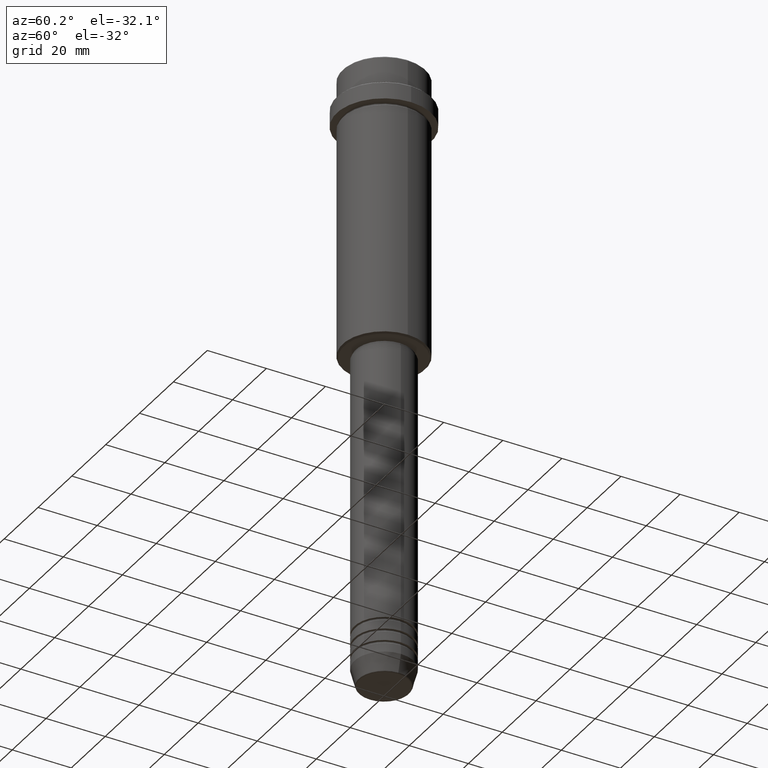
[diagram: clean part render]
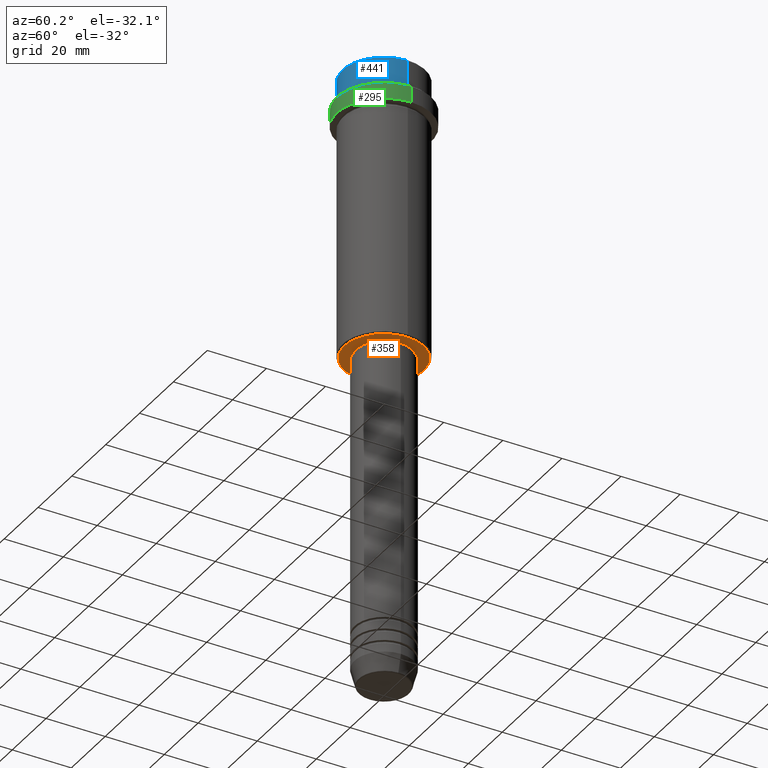
[diagram: same view with three faces highlighted in distinct colors, each labeled with its STEP entity id]
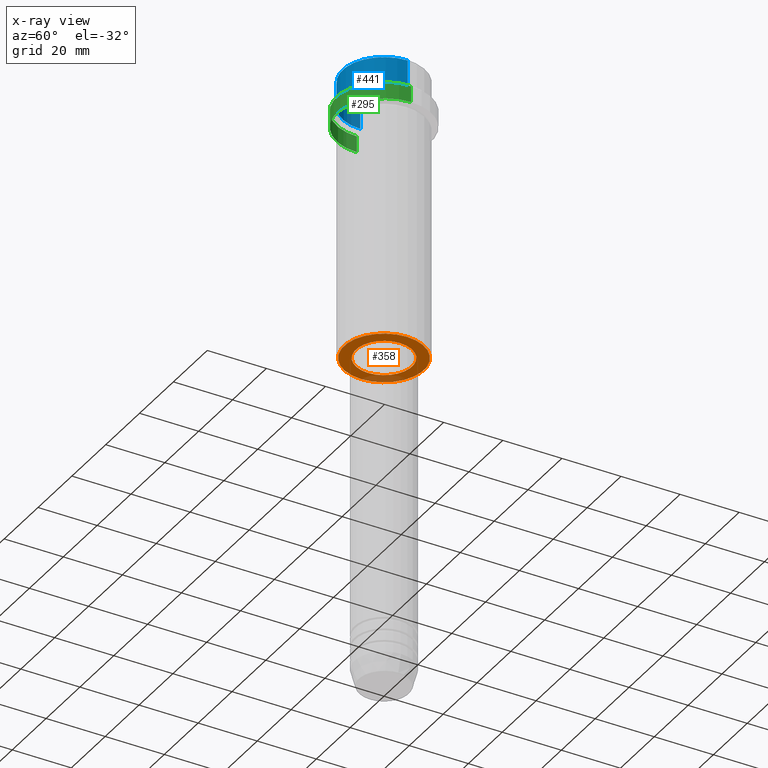
[diagram: x-ray of the same camera — body ghosted, the three highlighted faces saturated]
A machine part, auxiliary view with three faces highlighted in distinct colors.
The next image is the same camera in x-ray (body ghosted, the three faces saturated) — at least one of them is partly hidden behind the body in this view.
Their STEP definitions:

[orange] entity #358 — the highlighted planar face has unit normal (0, 0, -1).
#1 = FACE_BOUND ( 'NONE', #805, .T. ) ;
#5 = VERTEX_POINT ( 'NONE', #900 ) ;
#43 = VERTEX_POINT ( 'NONE', #1018 ) ;
#55 = ORIENTED_EDGE ( 'NONE', *, *, #289, .T. ) ;
#83 = CIRCLE ( 'NONE', #255, 13.50000000000006928 ) ;
#133 = DIRECTION ( 'NONE',  ( 0.000000000000000000, 0.000000000000000000, -1.000000000000000000 ) ) ;
#149 = CIRCLE ( 'NONE', #509, 9.499999999999996447 ) ;
#150 = DIRECTION ( 'NONE',  ( -0.000000000000000000, -0.000000000000000000, 1.000000000000000000 ) ) ;
#215 = CARTESIAN_POINT ( 'NONE',  ( -13.50000000000006928, 1.683889348827613809E-15, -95.99999999999998579 ) ) ;
#217 = VERTEX_POINT ( 'NONE', #215 ) ;
#255 = AXIS2_PLACEMENT_3D ( 'NONE', #360, #695, #1138 ) ;
#258 = CIRCLE ( 'NONE', #855, 9.499999999999996447 ) ;
#289 = EDGE_CURVE ( 'NONE', #924, #217, #1360, .T. ) ;
#325 = CARTESIAN_POINT ( 'NONE',  ( 0.000000000000000000, 14.00000000000000000, -95.99999999999998579 ) ) ;
#358 = ADVANCED_FACE ( 'NONE', ( #867, #1 ), #1306, .T. ) ;
#360 = CARTESIAN_POINT ( 'NONE',  ( 0.000000000000000000, 0.000000000000000000, -95.99999999999998579 ) ) ;
#364 = DIRECTION ( 'NONE',  ( 1.000000000000000000, 0.000000000000000000, 0.000000000000000000 ) ) ;
#388 = EDGE_LOOP ( 'NONE', ( #55, #657 ) ) ;
#439 = DIRECTION ( 'NONE',  ( -1.000000000000000000, 0.000000000000000000, -0.000000000000000000 ) ) ;
#468 = CARTESIAN_POINT ( 'NONE',  ( 0.000000000000000000, 0.000000000000000000, -95.99999999999998579 ) ) ;
#509 = AXIS2_PLACEMENT_3D ( 'NONE', #688, #150, #364 ) ;
#623 = CARTESIAN_POINT ( 'NONE',  ( 0.000000000000000000, 0.000000000000000000, -95.99999999999998579 ) ) ;
#657 = ORIENTED_EDGE ( 'NONE', *, *, #793, .T. ) ;
#673 = ORIENTED_EDGE ( 'NONE', *, *, #1355, .T. ) ;
#688 = CARTESIAN_POINT ( 'NONE',  ( 0.000000000000000000, 0.000000000000000000, -95.99999999999998579 ) ) ;
#695 = DIRECTION ( 'NONE',  ( 0.000000000000000000, 0.000000000000000000, -1.000000000000000000 ) ) ;
#732 = ORIENTED_EDGE ( 'NONE', *, *, #1367, .T. ) ;
#793 = EDGE_CURVE ( 'NONE', #217, #924, #83, .T. ) ;
#801 = DIRECTION ( 'NONE',  ( -0.000000000000000000, -0.000000000000000000, 1.000000000000000000 ) ) ;
#805 = EDGE_LOOP ( 'NONE', ( #673, #732 ) ) ;
#842 = DIRECTION ( 'NONE',  ( 0.000000000000000000, 0.000000000000000000, -1.000000000000000000 ) ) ;
#855 = AXIS2_PLACEMENT_3D ( 'NONE', #468, #801, #1237 ) ;
#867 = FACE_OUTER_BOUND ( 'NONE', #388, .T. ) ;
#900 = CARTESIAN_POINT ( 'NONE',  ( -9.499999999999996447, 1.163414459189985091E-15, -95.99999999999998579 ) ) ;
#924 = VERTEX_POINT ( 'NONE', #1186 ) ;
#1018 = CARTESIAN_POINT ( 'NONE',  ( 9.499999999999996447, 0.000000000000000000, -95.99999999999998579 ) ) ;
#1038 = AXIS2_PLACEMENT_3D ( 'NONE', #623, #842, #1183 ) ;
#1085 = AXIS2_PLACEMENT_3D ( 'NONE', #325, #133, #439 ) ;
#1138 = DIRECTION ( 'NONE',  ( -1.000000000000000000, 0.000000000000000000, 0.000000000000000000 ) ) ;
#1183 = DIRECTION ( 'NONE',  ( -1.000000000000000000, 0.000000000000000000, 0.000000000000000000 ) ) ;
#1186 = CARTESIAN_POINT ( 'NONE',  ( 13.50000000000006928, 0.000000000000000000, -95.99999999999998579 ) ) ;
#1237 = DIRECTION ( 'NONE',  ( 1.000000000000000000, 0.000000000000000000, 0.000000000000000000 ) ) ;
#1306 = PLANE ( 'NONE',  #1085 ) ;
#1355 = EDGE_CURVE ( 'NONE', #43, #5, #258, .T. ) ;
#1360 = CIRCLE ( 'NONE', #1038, 13.50000000000006928 ) ;
#1367 = EDGE_CURVE ( 'NONE', #5, #43, #149, .T. ) ;

[blue] entity #441 — the highlighted cylindrical surface (partial cylindrical patch) has radius 14 mm, axis along (-0, -0, 1).
#17 = DIRECTION ( 'NONE',  ( 1.000000000000000000, 0.000000000000000000, 0.000000000000000000 ) ) ;
#52 = ORIENTED_EDGE ( 'NONE', *, *, #1082, .F. ) ;
#57 = AXIS2_PLACEMENT_3D ( 'NONE', #1334, #1351, #1228 ) ;
#104 = VERTEX_POINT ( 'NONE', #1142 ) ;
#164 = VERTEX_POINT ( 'NONE', #260 ) ;
#174 = EDGE_LOOP ( 'NONE', ( #52, #518, #269, #254 ) ) ;
#192 = VECTOR ( 'NONE', #1210, 1000.000000000000000 ) ;
#240 = VERTEX_POINT ( 'NONE', #846 ) ;
#254 = ORIENTED_EDGE ( 'NONE', *, *, #1231, .T. ) ;
#260 = CARTESIAN_POINT ( 'NONE',  ( 13.99999999999998401, 0.000000000000000000, -0.4999999999999917843 ) ) ;
#269 = ORIENTED_EDGE ( 'NONE', *, *, #1255, .T. ) ;
#281 = CIRCLE ( 'NONE', #1090, 13.99999999999998401 ) ;
#394 = VECTOR ( 'NONE', #857, 1000.000000000000000 ) ;
#432 = CYLINDRICAL_SURFACE ( 'NONE', #435, 13.99999999999998401 ) ;
#435 = AXIS2_PLACEMENT_3D ( 'NONE', #1330, #1347, #17 ) ;
#441 = ADVANCED_FACE ( 'NONE', ( #1209 ), #432, .T. ) ;
#455 = CARTESIAN_POINT ( 'NONE',  ( 13.99999999999998401, 0.000000000000000000, 0.000000000000000000 ) ) ;
#518 = ORIENTED_EDGE ( 'NONE', *, *, #781, .T. ) ;
#551 = DIRECTION ( 'NONE',  ( 0.000000000000000000, 0.000000000000000000, -1.000000000000000000 ) ) ;
#563 = CARTESIAN_POINT ( 'NONE',  ( 0.000000000000000000, 0.000000000000000000, -0.4999999999999917843 ) ) ;
#663 = LINE ( 'NONE', #455, #192 ) ;
#734 = LINE ( 'NONE', #751, #394 ) ;
#751 = CARTESIAN_POINT ( 'NONE',  ( -13.99999999999998401, 1.714505518806292666E-15, 0.000000000000000000 ) ) ;
#781 = EDGE_CURVE ( 'NONE', #1097, #104, #1063, .T. ) ;
#846 = CARTESIAN_POINT ( 'NONE',  ( -13.99999999999998401, 1.714505518806292666E-15, -0.4999999999999917843 ) ) ;
#857 = DIRECTION ( 'NONE',  ( -0.000000000000000000, -0.000000000000000000, 1.000000000000000000 ) ) ;
#889 = DIRECTION ( 'NONE',  ( 1.000000000000000000, 0.000000000000000000, 0.000000000000000000 ) ) ;
#978 = CARTESIAN_POINT ( 'NONE',  ( -13.99999999999997158, 1.714505518806291877E-15, -8.999999999999998224 ) ) ;
#1063 = CIRCLE ( 'NONE', #57, 13.99999999999997158 ) ;
#1082 = EDGE_CURVE ( 'NONE', #1097, #240, #734, .T. ) ;
#1090 = AXIS2_PLACEMENT_3D ( 'NONE', #563, #551, #889 ) ;
#1097 = VERTEX_POINT ( 'NONE', #978 ) ;
#1142 = CARTESIAN_POINT ( 'NONE',  ( 13.99999999999997158, 0.000000000000000000, -8.999999999999998224 ) ) ;
#1209 = FACE_OUTER_BOUND ( 'NONE', #174, .T. ) ;
#1210 = DIRECTION ( 'NONE',  ( -0.000000000000000000, -0.000000000000000000, 1.000000000000000000 ) ) ;
#1228 = DIRECTION ( 'NONE',  ( 1.000000000000000000, 0.000000000000000000, 0.000000000000000000 ) ) ;
#1231 = EDGE_CURVE ( 'NONE', #164, #240, #281, .T. ) ;
#1255 = EDGE_CURVE ( 'NONE', #104, #164, #663, .T. ) ;
#1330 = CARTESIAN_POINT ( 'NONE',  ( 0.000000000000000000, 0.000000000000000000, 0.000000000000000000 ) ) ;
#1334 = CARTESIAN_POINT ( 'NONE',  ( 0.000000000000000000, 0.000000000000000000, -8.999999999999998224 ) ) ;
#1347 = DIRECTION ( 'NONE',  ( -0.000000000000000000, -0.000000000000000000, 1.000000000000000000 ) ) ;
#1351 = DIRECTION ( 'NONE',  ( -0.000000000000000000, -0.000000000000000000, 1.000000000000000000 ) ) ;

[green] entity #295 — the highlighted cylindrical surface (partial cylindrical patch) has radius 16 mm, axis along (-0, -0, 1).
#147 = CIRCLE ( 'NONE', #1339, 15.99999999999997335 ) ;
#158 = LINE ( 'NONE', #1035, #1288 ) ;
#188 = DIRECTION ( 'NONE',  ( 1.000000000000000000, 0.000000000000000000, 0.000000000000000000 ) ) ;
#196 = FACE_OUTER_BOUND ( 'NONE', #1199, .T. ) ;
#295 = ADVANCED_FACE ( 'NONE', ( #196 ), #1413, .T. ) ;
#363 = DIRECTION ( 'NONE',  ( -0.000000000000000000, -0.000000000000000000, 1.000000000000000000 ) ) ;
#385 = CARTESIAN_POINT ( 'NONE',  ( 15.99999999999997335, 0.000000000000000000, 0.000000000000000000 ) ) ;
#428 = CARTESIAN_POINT ( 'NONE',  ( 0.000000000000000000, 0.000000000000000000, 0.000000000000000000 ) ) ;
#446 = CARTESIAN_POINT ( 'NONE',  ( 15.99999999999997335, 0.000000000000000000, -16.00000000000000000 ) ) ;
#467 = LINE ( 'NONE', #385, #530 ) ;
#506 = EDGE_CURVE ( 'NONE', #1349, #1009, #467, .T. ) ;
#512 = VERTEX_POINT ( 'NONE', #1273 ) ;
#530 = VECTOR ( 'NONE', #363, 1000.000000000000000 ) ;
#582 = DIRECTION ( 'NONE',  ( 0.000000000000000000, 0.000000000000000000, -1.000000000000000000 ) ) ;
#652 = DIRECTION ( 'NONE',  ( -0.000000000000000000, -0.000000000000000000, 1.000000000000000000 ) ) ;
#668 = AXIS2_PLACEMENT_3D ( 'NONE', #768, #652, #1401 ) ;
#717 = AXIS2_PLACEMENT_3D ( 'NONE', #428, #1080, #188 ) ;
#736 = ORIENTED_EDGE ( 'NONE', *, *, #774, .F. ) ;
#768 = CARTESIAN_POINT ( 'NONE',  ( 0.000000000000000000, 0.000000000000000000, -16.00000000000000000 ) ) ;
#774 = EDGE_CURVE ( 'NONE', #512, #1121, #158, .T. ) ;
#804 = CARTESIAN_POINT ( 'NONE',  ( 0.000000000000000000, 0.000000000000000000, -10.50000000000001243 ) ) ;
#848 = ORIENTED_EDGE ( 'NONE', *, *, #850, .T. ) ;
#850 = EDGE_CURVE ( 'NONE', #512, #1349, #994, .T. ) ;
#891 = DIRECTION ( 'NONE',  ( -0.000000000000000000, -0.000000000000000000, 1.000000000000000000 ) ) ;
#914 = CARTESIAN_POINT ( 'NONE',  ( 15.99999999999997335, 0.000000000000000000, -10.50000000000001243 ) ) ;
#962 = CARTESIAN_POINT ( 'NONE',  ( -15.99999999999997335, 1.959434878635761976E-15, -10.50000000000001243 ) ) ;
#994 = CIRCLE ( 'NONE', #668, 15.99999999999997335 ) ;
#1002 = EDGE_CURVE ( 'NONE', #1009, #1121, #147, .T. ) ;
#1009 = VERTEX_POINT ( 'NONE', #914 ) ;
#1023 = ORIENTED_EDGE ( 'NONE', *, *, #506, .T. ) ;
#1027 = DIRECTION ( 'NONE',  ( 1.000000000000000000, 0.000000000000000000, 0.000000000000000000 ) ) ;
#1035 = CARTESIAN_POINT ( 'NONE',  ( -15.99999999999997335, 1.959434878635761976E-15, 0.000000000000000000 ) ) ;
#1080 = DIRECTION ( 'NONE',  ( -0.000000000000000000, -0.000000000000000000, 1.000000000000000000 ) ) ;
#1121 = VERTEX_POINT ( 'NONE', #962 ) ;
#1199 = EDGE_LOOP ( 'NONE', ( #736, #848, #1023, #1283 ) ) ;
#1273 = CARTESIAN_POINT ( 'NONE',  ( -15.99999999999997335, 1.959434878635761976E-15, -16.00000000000000000 ) ) ;
#1283 = ORIENTED_EDGE ( 'NONE', *, *, #1002, .T. ) ;
#1288 = VECTOR ( 'NONE', #891, 1000.000000000000000 ) ;
#1339 = AXIS2_PLACEMENT_3D ( 'NONE', #804, #582, #1027 ) ;
#1349 = VERTEX_POINT ( 'NONE', #446 ) ;
#1401 = DIRECTION ( 'NONE',  ( 1.000000000000000000, 0.000000000000000000, 0.000000000000000000 ) ) ;
#1413 = CYLINDRICAL_SURFACE ( 'NONE', #717, 15.99999999999997335 ) ;